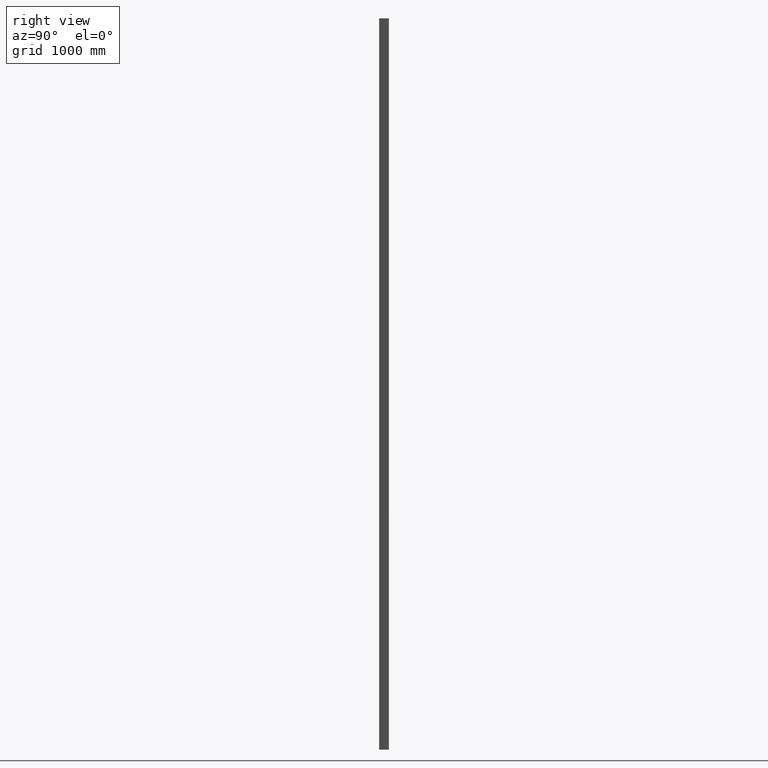
[diagram: clean part render]
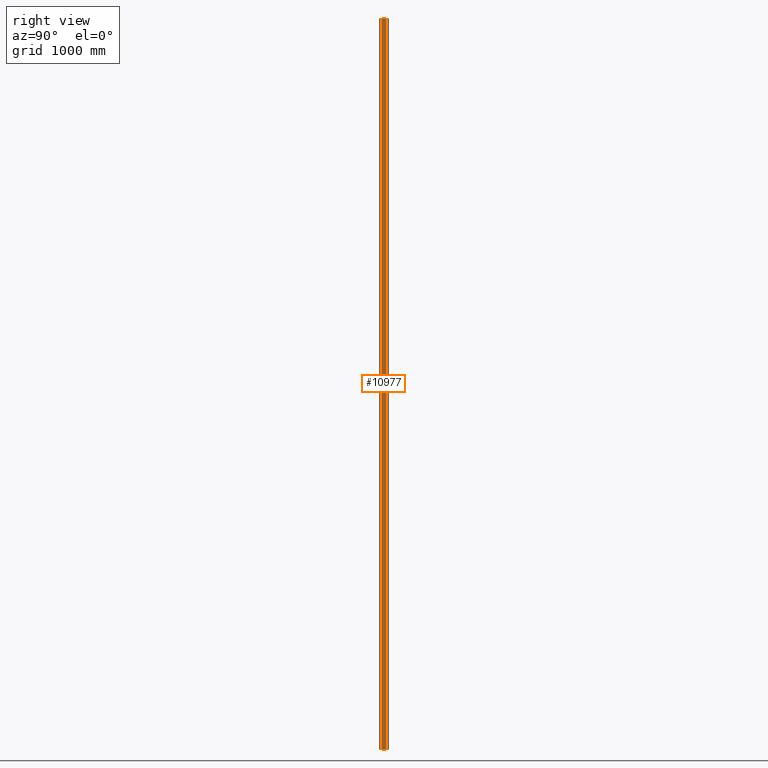
[diagram: same view with one face highlighted and labeled with its STEP entity id]
A machine part, right view. The second image highlights one B-rep face of the part: STEP entity #10977.
In plain terms, the highlighted planar face has unit normal (1, -0, 0).
Its self-contained STEP definition (entity closure, byte-faithful):
#841 = CARTESIAN_POINT ( 'NONE',  ( 60.00000000000000000, -35.50000000000000700, -6000.000000000000000 ) ) ;
#848 = CARTESIAN_POINT ( 'NONE',  ( 60.00000000000000000, -35.50000000000000700, 0.0000000000000000000 ) ) ;
#856 = CARTESIAN_POINT ( 'NONE',  ( 60.00000000000000000, -4.500000000000000900, -6000.000000000000000 ) ) ;
#864 = CARTESIAN_POINT ( 'NONE',  ( 60.00000000000000000, -4.500000000000001800, 0.0000000000000000000 ) ) ;
#3426 = EDGE_CURVE ( 'NONE', #23207, #23231, #7702, .T. ) ;
#3427 = EDGE_CURVE ( 'NONE', #23217, #23245, #7704, .T. ) ;
#5404 = LINE ( 'NONE', #16280, #5406 ) ;
#5406 = VECTOR ( 'NONE', #16281, 1000.000000000000000 ) ;
#5407 = LINE ( 'NONE', #16285, #5409 ) ;
#5409 = VECTOR ( 'NONE', #16286, 1000.000000000000000 ) ;
#7702 = LINE ( 'NONE', #8253, #7703 ) ;
#7703 = VECTOR ( 'NONE', #8254, 1000.000000000000000 ) ;
#7704 = LINE ( 'NONE', #8255, #7705 ) ;
#7705 = VECTOR ( 'NONE', #8256, 1000.000000000000000 ) ;
#8253 = CARTESIAN_POINT ( 'NONE',  ( 60.00000000000000000, -35.50000000000000700, -6000.000000000000000 ) ) ;
#8254 = DIRECTION ( 'NONE',  ( 0.0000000000000000000, 1.000000000000000000, 0.0000000000000000000 ) ) ;
#8255 = CARTESIAN_POINT ( 'NONE',  ( 60.00000000000000000, -60.00000000000000000, 0.0000000000000000000 ) ) ;
#8256 = DIRECTION ( 'NONE',  ( 0.0000000000000000000, 1.000000000000000000, 0.0000000000000000000 ) ) ;
#9005 = EDGE_CURVE ( 'NONE', #23217, #23207, #5404, .T. ) ;
#9007 = EDGE_CURVE ( 'NONE', #23231, #23245, #5407, .T. ) ;
#10977 = ADVANCED_FACE ( 'NONE', ( #11353 ), #11958, .T. ) ;
#11353 = FACE_OUTER_BOUND ( 'NONE', #26010, .T. ) ;
#11958 = PLANE ( 'NONE',  #17154 ) ;
#11959 = CARTESIAN_POINT ( 'NONE',  ( 60.00000000000000000, -35.50000000000000700, 0.0000000000000000000 ) ) ;
#11960 = DIRECTION ( 'NONE',  ( 1.000000000000000000, -0.0000000000000000000, 0.0000000000000000000 ) ) ;
#11961 = DIRECTION ( 'NONE',  ( 0.0000000000000000000, 0.0000000000000000000, -1.000000000000000000 ) ) ;
#16280 = CARTESIAN_POINT ( 'NONE',  ( 60.00000000000000000, -35.50000000000000700, -3000.000000000000000 ) ) ;
#16281 = DIRECTION ( 'NONE',  ( 0.0000000000000000000, 0.0000000000000000000, -1.000000000000000000 ) ) ;
#16285 = CARTESIAN_POINT ( 'NONE',  ( 60.00000000000000000, -4.500000000000000900, -3000.000000000000000 ) ) ;
#16286 = DIRECTION ( 'NONE',  ( -0.0000000000000000000, -0.0000000000000000000, 1.000000000000000000 ) ) ;
#17154 = AXIS2_PLACEMENT_3D ( 'NONE', #11959, #11960, #11961 ) ;
#23207 = VERTEX_POINT ( 'NONE', #841 ) ;
#23217 = VERTEX_POINT ( 'NONE', #848 ) ;
#23231 = VERTEX_POINT ( 'NONE', #856 ) ;
#23245 = VERTEX_POINT ( 'NONE', #864 ) ;
#26010 = EDGE_LOOP ( 'NONE', ( #27364, #27365, #27366, #27367 ) ) ;
#27364 = ORIENTED_EDGE ( 'NONE', *, *, #3426, .T. ) ;
#27365 = ORIENTED_EDGE ( 'NONE', *, *, #9007, .T. ) ;
#27366 = ORIENTED_EDGE ( 'NONE', *, *, #3427, .F. ) ;
#27367 = ORIENTED_EDGE ( 'NONE', *, *, #9005, .T. ) ;